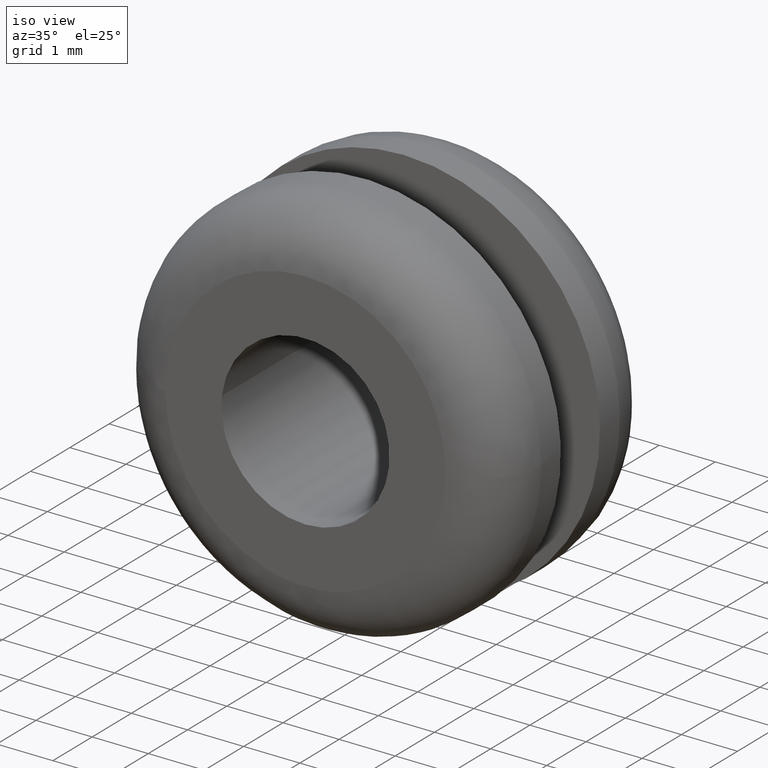
[diagram: clean part render]
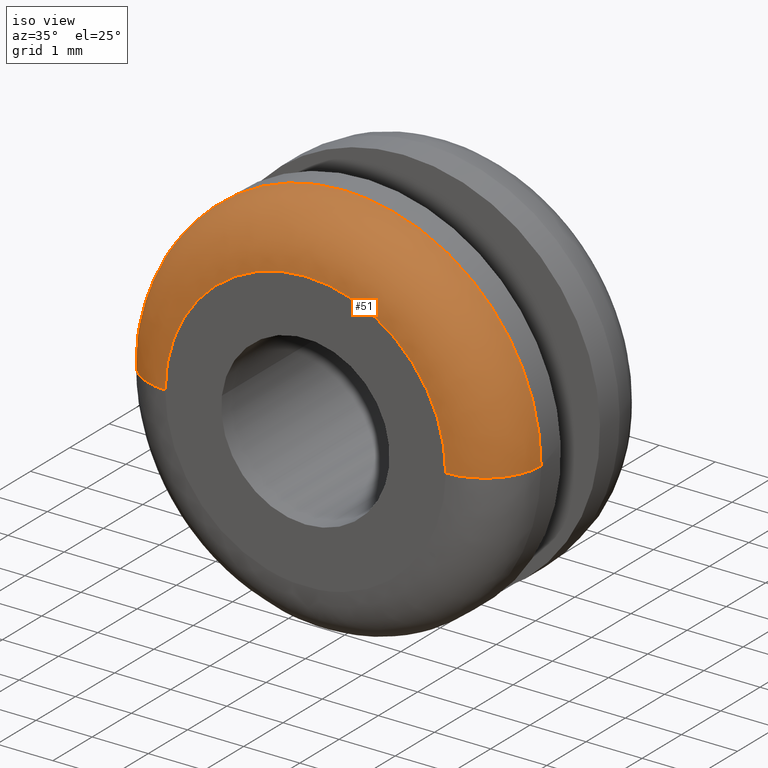
[diagram: same view with one face highlighted and labeled with its STEP entity id]
A machine part, iso view. The second image highlights one B-rep face of the part: STEP entity #51.
In plain terms, the highlighted face is a freeform B-spline surface patch.
Its self-contained STEP definition (entity closure, byte-faithful):
#51=ADVANCED_FACE('',(#171),#170,.T.);
#170=( BOUNDED_SURFACE() B_SPLINE_SURFACE( 2,2,((#342,#343,#344,#345,#346),(#347,#348,#349,#350,#351),(#352,#353,#354,#355,#356),(#357,#358,#359,#360,#361),(#362,#363,#364,#365,#366)), .UNSPECIFIED.,.F.,.F.,.F.) B_SPLINE_SURFACE_WITH_KNOTS((3,2,3),(3,2,3),(0.00000000000E+000,5.00000000000E-001,1.00000000000E+000),(0.00000000000E+000,5.00000000000E-001,1.00000000000E+000), .UNSPECIFIED. ) GEOMETRIC_REPRESENTATION_ITEM() RATIONAL_B_SPLINE_SURFACE(((1.00000000000E+000,7.07106781015E-001,1.00000000000E+000,7.07106781015E-001,1.00000000000E+000),(7.07106781187E-001,4.99999999879E-001,7.07106781187E-001,4.99999999879E-001,7.07106781187E-001),(1.00000000000E+000,7.07106781015E-001,1.00000000000E+000,7.07106781015E-001,1.00000000000E+000),(7.07106781187E-001,4.99999999879E-001,7.07106781187E-001,4.99999999879E-001,7.07106781187E-001),(1.00000000000E+000,7.07106781015E-001,1.00000000000E+000,7.07106781015E-001,1.00000000000E+000))) REPRESENTATION_ITEM('') SURFACE() );
#171=FACE_OUTER_BOUND('',#367,.T.);
#342=CARTESIAN_POINT('',(3.50000000000E+000,1.00000000000E+000,3.22007903670E-014));
#343=CARTESIAN_POINT('',(3.50000000000E+000,-4.84932790556E-010,3.02969465660E-014));
#344=CARTESIAN_POINT('',(2.49999999952E+000,7.56950058189E-013,3.02969506115E-014));
#345=CARTESIAN_POINT('',(1.49999999903E+000,4.86446830714E-010,3.02969546570E-014));
#346=CARTESIAN_POINT('',(1.50000000000E+000,1.00000000097E+000,3.22007984579E-014));
#347=CARTESIAN_POINT('',(3.50000000000E+000,1.00000000000E+000,3.50000000000E+000));
#348=CARTESIAN_POINT('',(3.50000000000E+000,-4.84939429600E-010,3.50000000000E+000));
#349=CARTESIAN_POINT('',(2.49999999952E+000,7.52294995092E-013,2.49999999951E+000));
#350=CARTESIAN_POINT('',(1.49999999903E+000,4.86443903386E-010,1.49999999903E+000));
#351=CARTESIAN_POINT('',(1.50000000000E+000,1.00000000097E+000,1.50000000000E+000));
#352=CARTESIAN_POINT('',(3.65373619039E-013,1.00000000000E+000,3.50000000000E+000));
#353=CARTESIAN_POINT('',(5.16868720048E-013,-4.85469762177E-010,3.50000000000E+000));
#354=CARTESIAN_POINT('',(5.16807483590E-013,3.73479025484E-013,2.49999999951E+000));
#355=CARTESIAN_POINT('',(5.16746247132E-013,4.86216655159E-010,1.49999999903E+000));
#356=CARTESIAN_POINT('',(3.65251146123E-013,1.00000000097E+000,1.50000000000E+000));
#357=CARTESIAN_POINT('',(-3.50000000000E+000,1.00000000000E+000,3.50000000000E+000));
#358=CARTESIAN_POINT('',(-3.50000000000E+000,-4.85999914634E-010,3.50000000000E+000));
#359=CARTESIAN_POINT('',(-2.49999999951E+000,-5.27461622325E-015,2.49999999951E+000));
#360=CARTESIAN_POINT('',(-1.49999999903E+000,4.85989443115E-010,1.49999999903E+000));
#361=CARTESIAN_POINT('',(-1.50000000000E+000,1.00000000097E+000,1.50000000000E+000));
#362=CARTESIAN_POINT('',(-3.50000000000E+000,1.00000000000E+000,3.26294450584E-014));
#363=CARTESIAN_POINT('',(-3.50000000000E+000,-4.85993231002E-010,3.07256012575E-014));
#364=CARTESIAN_POINT('',(-2.49999999951E+000,-4.44089209850E-016,3.06031325339E-014));
#365=CARTESIAN_POINT('',(-1.49999999903E+000,4.85992288947E-010,3.04806638103E-014));
#366=CARTESIAN_POINT('',(-1.50000000000E+000,1.00000000097E+000,3.23845076113E-014));
#367=EDGE_LOOP('',(#455,#456,#457,#458,#459,#460,#461,#462));
#455=ORIENTED_EDGE('',*,*,#513,.T.);
#456=ORIENTED_EDGE('',*,*,#512,.T.);
#457=ORIENTED_EDGE('',*,*,#520,.T.);
#458=ORIENTED_EDGE('',*,*,#519,.T.);
#459=ORIENTED_EDGE('',*,*,#529,.T.);
#460=ORIENTED_EDGE('',*,*,#503,.F.);
#461=ORIENTED_EDGE('',*,*,#505,.F.);
#462=ORIENTED_EDGE('',*,*,#530,.F.);
#503=EDGE_CURVE('',#654,#655,#656,.T.);
#505=EDGE_CURVE('',#662,#654,#669,.T.);
#512=EDGE_CURVE('',#715,#708,#716,.T.);
#513=EDGE_CURVE('',#722,#715,#723,.T.);
#519=EDGE_CURVE('',#763,#756,#764,.T.);
#520=EDGE_CURVE('',#708,#763,#770,.T.);
#529=EDGE_CURVE('',#756,#655,#830,.T.);
#530=EDGE_CURVE('',#722,#662,#836,.T.);
#654=VERTEX_POINT('',#951);
#655=VERTEX_POINT('',#952);
#656=CIRCLE('',#956,2.50000000001E+000);
#662=VERTEX_POINT('',#957);
#669=CIRCLE('',#965,2.50000000001E+000);
#708=VERTEX_POINT('',#985);
#715=VERTEX_POINT('',#988);
#716=CIRCLE('',#992,3.50000000000E+000);
#722=VERTEX_POINT('',#993);
#723=(BOUNDED_CURVE() B_SPLINE_CURVE(2,(#994,#995,#996),.UNSPECIFIED.,.F.,.F.) B_SPLINE_CURVE_WITH_KNOTS((3,3),(1.78756713965E-003,1.00000000000E+000),.UNSPECIFIED.) CURVE() GEOMETRIC_REPRESENTATION_ITEM() RATIONAL_B_SPLINE_CURVE((1.00000000000E+000,7.06210638311E-001,1.00000000000E+000)) REPRESENTATION_ITEM('') );
#756=VERTEX_POINT('',#1013);
#763=VERTEX_POINT('',#1018);
#764=CIRCLE('',#1022,3.50000024298E+000);
#770=CIRCLE('',#1026,3.50000000000E+000);
#830=(BOUNDED_CURVE() B_SPLINE_CURVE(2,(#1067,#1068,#1069),.UNSPECIFIED.,.F.,.F.) B_SPLINE_CURVE_WITH_KNOTS((3,3),(0.00000000000E+000,5.00000000000E-001),.UNSPECIFIED.) CURVE() GEOMETRIC_REPRESENTATION_ITEM() RATIONAL_B_SPLINE_CURVE((1.00000000000E+000,7.07106781015E-001,1.00000000000E+000)) REPRESENTATION_ITEM('') );
#836=(BOUNDED_CURVE() B_SPLINE_CURVE(3,(#1070,#1071,#1072,#1073,#1074),.UNSPECIFIED.,.F.,.F.) B_SPLINE_CURVE_WITH_KNOTS((4,1,4),(0.00000000000E+000,2.50000169801E-001,5.00000294869E-001),.UNSPECIFIED.) CURVE() GEOMETRIC_REPRESENTATION_ITEM() RATIONAL_B_SPLINE_CURVE((1.00000000000E+000,1.00000000000E+000,1.00000000000E+000,1.00000000000E+000,1.00000000000E+000)) REPRESENTATION_ITEM('') );
#951=CARTESIAN_POINT('',(-3.59982199386E-016,4.19516551547E-016,2.50000000003E+000));
#952=CARTESIAN_POINT('',(-2.50000000002E+000,-1.98554242287E-017,3.06612246436E-014));
#953=CARTESIAN_POINT('',(-2.52553533642E-012,-1.98554242263E-017,1.33317801243E-011));
#954=DIRECTION('',(-4.48415508584E-044,-1.00000000000E+000,1.75748790309E-016));
#955=DIRECTION('',(1.00950359184E-012,1.75748790309E-016,1.00000000000E+000));
#956=AXIS2_PLACEMENT_3D('',#953,#954,#955);
#957=CARTESIAN_POINT('',(2.49999998655E+000,-1.99010258141E-017,-2.59470266449E-004));
#962=CARTESIAN_POINT('',(-2.52553533642E-012,-1.98554242263E-017,1.33317801243E-011));
#963=DIRECTION('',(-4.48415508584E-044,-1.00000000000E+000,1.75748790309E-016));
#964=DIRECTION('',(1.00950359184E-012,1.75748790309E-016,1.00000000000E+000));
#965=AXIS2_PLACEMENT_3D('',#962,#963,#964);
#985=CARTESIAN_POINT('',(-1.89955101623E+000,9.99999999999E-001,2.93967786275E+000));
#988=CARTESIAN_POINT('',(0.00000000000E+000,1.00000000000E+000,3.50000000000E+000));
#989=CARTESIAN_POINT('',(1.08579811808E-013,9.99999999993E-001,-1.15907283771E-013));
#990=DIRECTION('',(-5.15244661612E-028,-1.00000000000E+000,1.91427825972E-012));
#991=DIRECTION('',(3.10228033738E-014,-1.91427825972E-012,-1.00000000000E+000));
#992=AXIS2_PLACEMENT_3D('',#989,#990,#991);
#993=CARTESIAN_POINT('',(3.50000000000E+000,1.00000000000E+000,3.28626015289E-014));
#994=CARTESIAN_POINT('',(3.50000000000E+000,1.00000000000E+000,3.28626015289E-014));
#995=CARTESIAN_POINT('',(3.50887699762E+000,1.00000000099E+000,3.50000000000E+000));
#996=CARTESIAN_POINT('',(1.42247325030E-016,1.00000000097E+000,3.50000000000E+000));
#1013=CARTESIAN_POINT('',(-3.49999999383E+000,1.00000000001E+000,3.19403528405E-014));
#1018=CARTESIAN_POINT('',(-3.49147985844E+000,9.99999999994E-001,2.44066380514E-001));
#1019=CARTESIAN_POINT('',(2.49152385390E-007,9.99999999954E-001,7.97575100409E-008));
#1020=DIRECTION('',(-1.48100166367E-011,-1.00000000000E+000,-5.01030232698E-011));
#1021=DIRECTION('',(9.97565675772E-001,-1.12801189123E-011,-6.97332239465E-002));
#1022=AXIS2_PLACEMENT_3D('',#1019,#1020,#1021);
#1023=CARTESIAN_POINT('',(1.08579811808E-013,9.99999999993E-001,-1.15907283771E-013));
#1024=DIRECTION('',(-5.15244661612E-028,-1.00000000000E+000,1.91427825972E-012));
#1025=DIRECTION('',(3.10228033738E-014,-1.91427825972E-012,-1.00000000000E+000));
#1026=AXIS2_PLACEMENT_3D('',#1023,#1024,#1025);
#1067=CARTESIAN_POINT('',(-3.50000000000E+000,1.00000000000E+000,3.17721922990E-014));
#1068=CARTESIAN_POINT('',(-3.50000000000E+000,-4.85993231002E-010,2.98683484981E-014));
#1069=CARTESIAN_POINT('',(-2.49999999951E+000,-5.55111512313E-016,2.99908091344E-014));
#1070=CARTESIAN_POINT('',(3.50000000000E+000,1.00000000000E+000,3.28626015289E-014));
#1071=CARTESIAN_POINT('',(3.50222406525E+000,7.40549401190E-001,3.23209566994E-014));
#1072=CARTESIAN_POINT('',(3.28337604695E+000,2.16623251928E-001,3.11977725375E-014));
#1073=CARTESIAN_POINT('',(2.75944971597E+000,-2.22427941518E-003,3.06716677261E-014));
#1074=CARTESIAN_POINT('',(2.49999916550E+000,1.10499898510E-012,3.06421553712E-014));